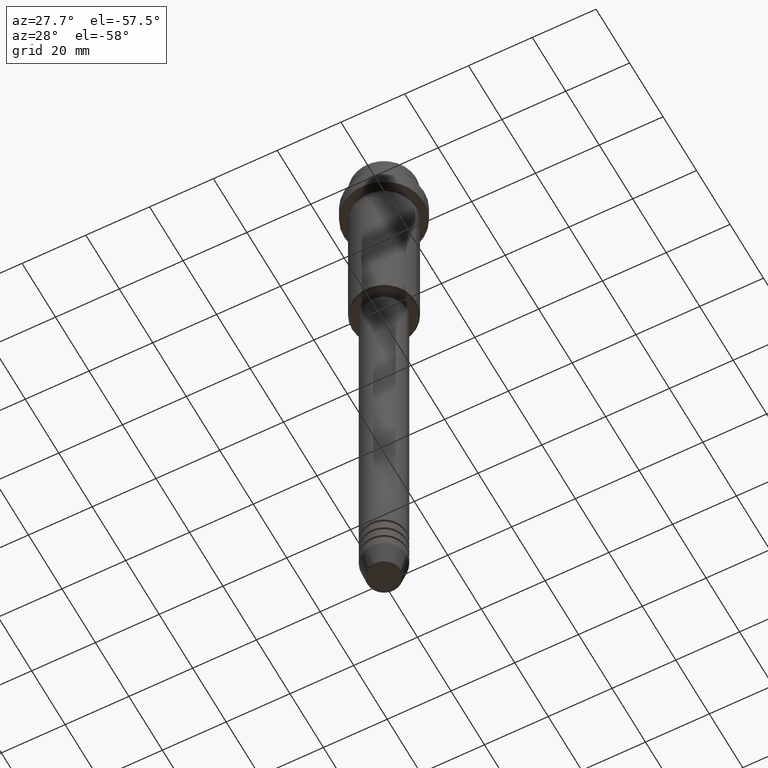
[diagram: clean part render]
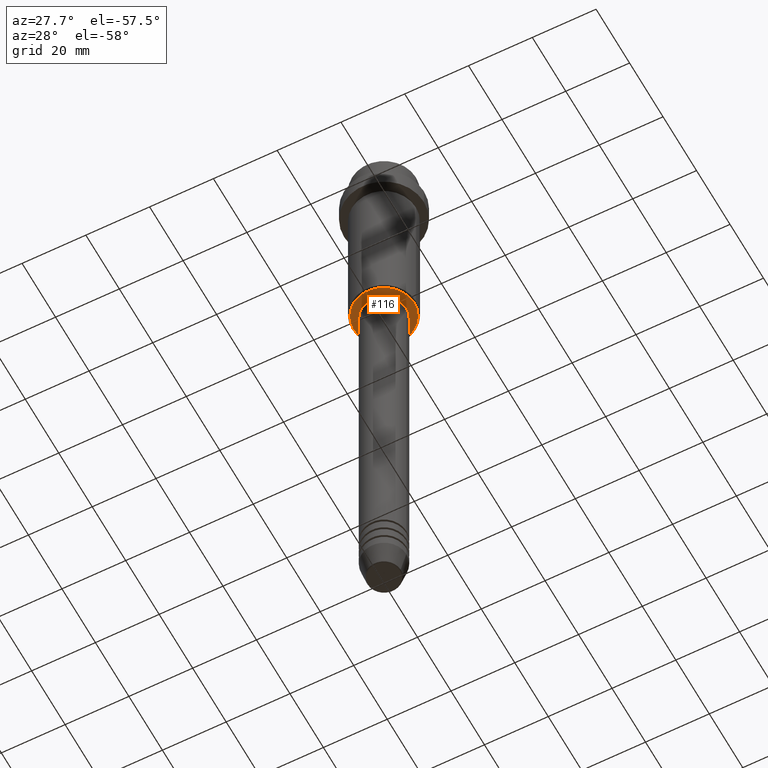
[diagram: same view with one face highlighted and labeled with its STEP entity id]
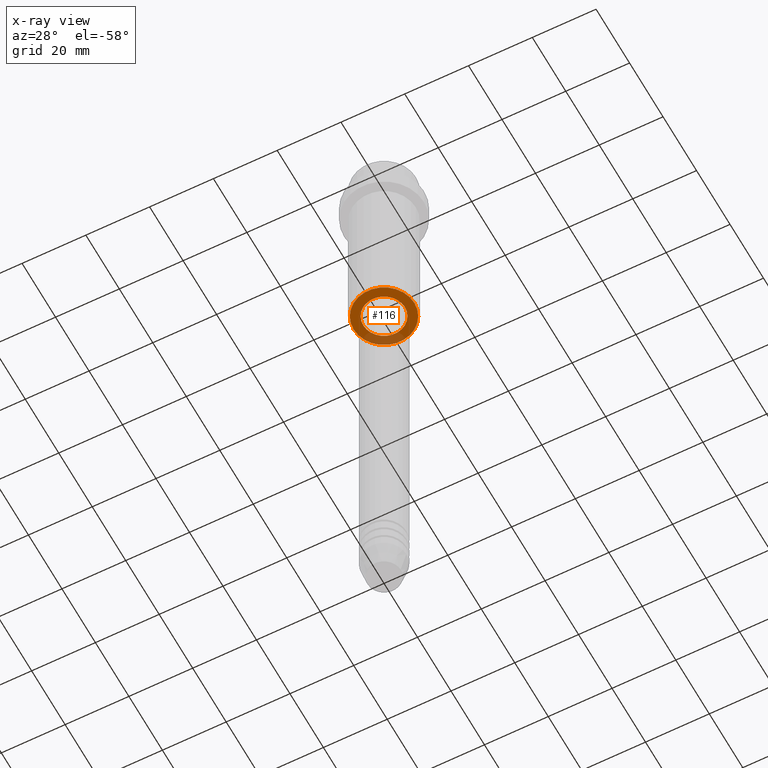
[diagram: x-ray of the same camera — body ghosted, the highlighted face saturated]
A machine part, auxiliary view. The second image highlights one B-rep face of the part: STEP entity #116.
The next image is the same camera in x-ray: the body ghosted, the highlighted face saturated — about 22% of this face is hidden behind the body in this view.
In plain terms, the highlighted planar face has unit normal (0, 0, -1).
Its self-contained STEP definition (entity closure, byte-faithful):
#2 = EDGE_LOOP ( 'NONE', ( #488, #595 ) ) ;
#14 = VERTEX_POINT ( 'NONE', #84 ) ;
#43 = AXIS2_PLACEMENT_3D ( 'NONE', #212, #1107, #776 ) ;
#67 = AXIS2_PLACEMENT_3D ( 'NONE', #844, #927, #1052 ) ;
#84 = CARTESIAN_POINT ( 'NONE',  ( 6.499999999999994671, 0.000000000000000000, -65.00000000000000000 ) ) ;
#109 = CARTESIAN_POINT ( 'NONE',  ( 9.500000000000008882, 0.000000000000000000, -65.00000000000000000 ) ) ;
#116 = ADVANCED_FACE ( 'NONE', ( #854, #1288 ), #1209, .T. ) ;
#174 = CARTESIAN_POINT ( 'NONE',  ( -6.499999999999994671, 7.960204194457788574E-16, -65.00000000000000000 ) ) ;
#188 = VERTEX_POINT ( 'NONE', #863 ) ;
#206 = DIRECTION ( 'NONE',  ( 1.000000000000000000, 0.000000000000000000, 0.000000000000000000 ) ) ;
#212 = CARTESIAN_POINT ( 'NONE',  ( 0.000000000000000000, 0.000000000000000000, -65.00000000000000000 ) ) ;
#214 = ORIENTED_EDGE ( 'NONE', *, *, #735, .T. ) ;
#452 = CARTESIAN_POINT ( 'NONE',  ( 0.000000000000000000, 10.00000000000000000, -65.00000000000000000 ) ) ;
#466 = DIRECTION ( 'NONE',  ( -0.000000000000000000, -0.000000000000000000, 1.000000000000000000 ) ) ;
#488 = ORIENTED_EDGE ( 'NONE', *, *, #585, .T. ) ;
#572 = AXIS2_PLACEMENT_3D ( 'NONE', #452, #1326, #1405 ) ;
#574 = CARTESIAN_POINT ( 'NONE',  ( 0.000000000000000000, 0.000000000000000000, -65.00000000000000000 ) ) ;
#585 = EDGE_CURVE ( 'NONE', #1114, #188, #1120, .T. ) ;
#595 = ORIENTED_EDGE ( 'NONE', *, *, #1360, .T. ) ;
#644 = CIRCLE ( 'NONE', #67, 9.500000000000008882 ) ;
#656 = EDGE_CURVE ( 'NONE', #14, #933, #1079, .T. ) ;
#677 = EDGE_LOOP ( 'NONE', ( #1337, #214 ) ) ;
#735 = EDGE_CURVE ( 'NONE', #933, #14, #1282, .T. ) ;
#754 = DIRECTION ( 'NONE',  ( -0.000000000000000000, -0.000000000000000000, 1.000000000000000000 ) ) ;
#776 = DIRECTION ( 'NONE',  ( -1.000000000000000000, 0.000000000000000000, 0.000000000000000000 ) ) ;
#844 = CARTESIAN_POINT ( 'NONE',  ( 0.000000000000000000, 0.000000000000000000, -65.00000000000000000 ) ) ;
#847 = AXIS2_PLACEMENT_3D ( 'NONE', #574, #466, #1250 ) ;
#854 = FACE_OUTER_BOUND ( 'NONE', #2, .T. ) ;
#863 = CARTESIAN_POINT ( 'NONE',  ( -9.500000000000008882, 1.194030629168669864E-15, -65.00000000000000000 ) ) ;
#927 = DIRECTION ( 'NONE',  ( 0.000000000000000000, 0.000000000000000000, -1.000000000000000000 ) ) ;
#933 = VERTEX_POINT ( 'NONE', #174 ) ;
#941 = AXIS2_PLACEMENT_3D ( 'NONE', #1207, #754, #206 ) ;
#1052 = DIRECTION ( 'NONE',  ( -1.000000000000000000, 0.000000000000000000, 0.000000000000000000 ) ) ;
#1079 = CIRCLE ( 'NONE', #941, 6.499999999999994671 ) ;
#1107 = DIRECTION ( 'NONE',  ( 0.000000000000000000, 0.000000000000000000, -1.000000000000000000 ) ) ;
#1114 = VERTEX_POINT ( 'NONE', #109 ) ;
#1120 = CIRCLE ( 'NONE', #43, 9.500000000000008882 ) ;
#1207 = CARTESIAN_POINT ( 'NONE',  ( 0.000000000000000000, 0.000000000000000000, -65.00000000000000000 ) ) ;
#1209 = PLANE ( 'NONE',  #572 ) ;
#1250 = DIRECTION ( 'NONE',  ( 1.000000000000000000, 0.000000000000000000, 0.000000000000000000 ) ) ;
#1282 = CIRCLE ( 'NONE', #847, 6.499999999999994671 ) ;
#1288 = FACE_BOUND ( 'NONE', #677, .T. ) ;
#1326 = DIRECTION ( 'NONE',  ( 0.000000000000000000, 0.000000000000000000, -1.000000000000000000 ) ) ;
#1337 = ORIENTED_EDGE ( 'NONE', *, *, #656, .T. ) ;
#1360 = EDGE_CURVE ( 'NONE', #188, #1114, #644, .T. ) ;
#1405 = DIRECTION ( 'NONE',  ( -1.000000000000000000, 0.000000000000000000, -0.000000000000000000 ) ) ;